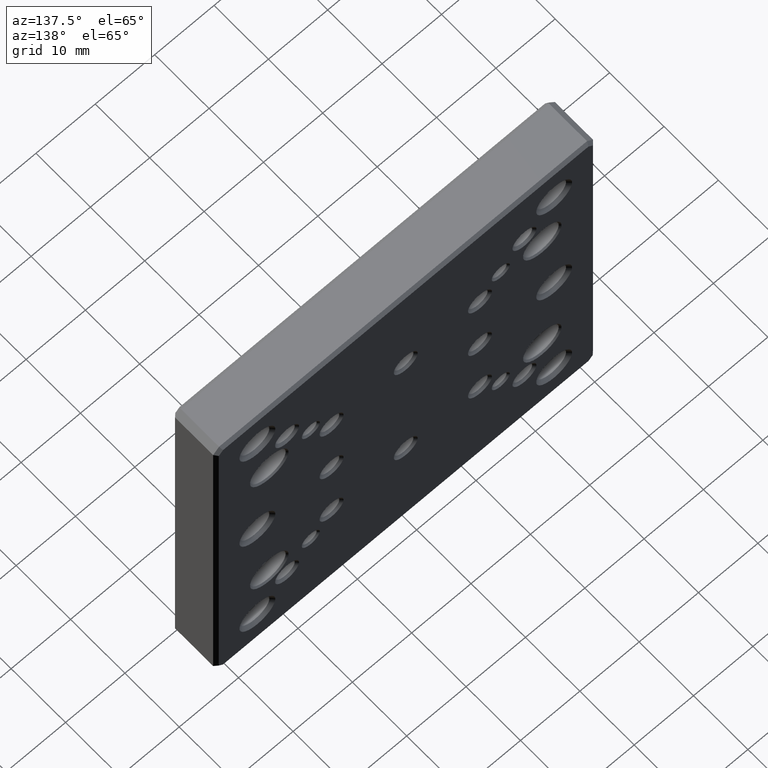
[diagram: clean part render]
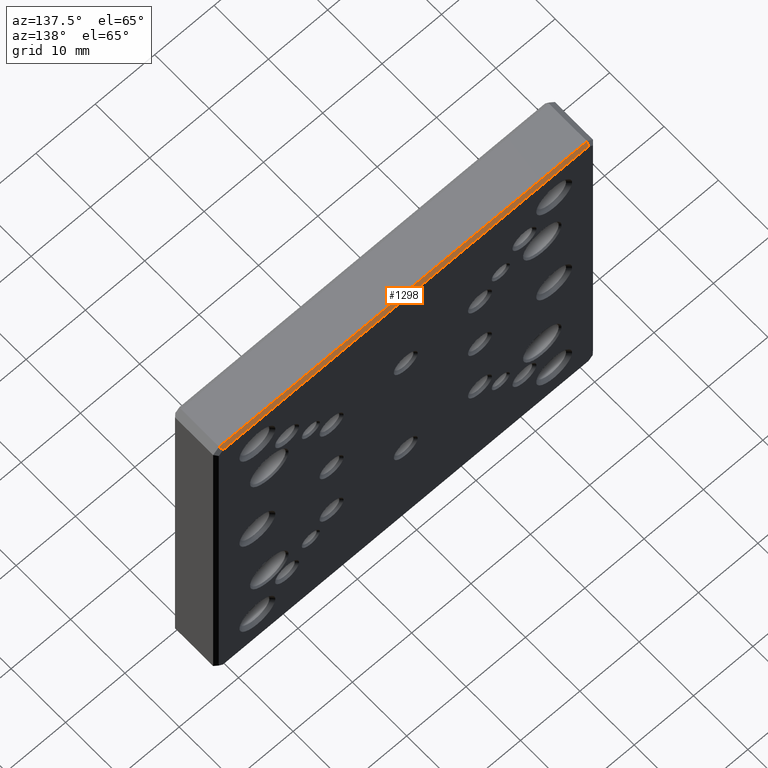
[diagram: same view with one face highlighted and labeled with its STEP entity id]
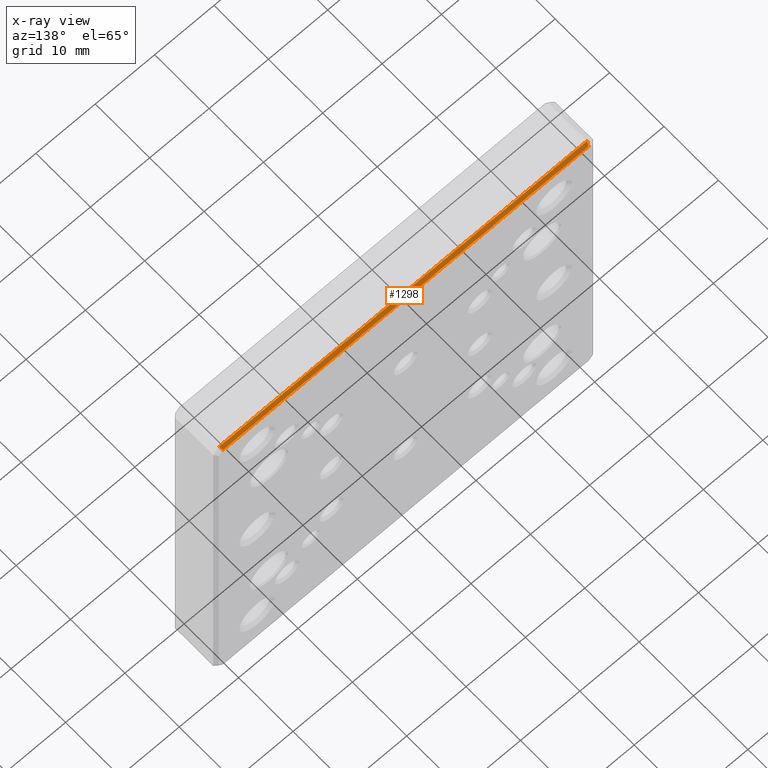
[diagram: x-ray of the same camera — body ghosted, the highlighted face saturated]
A machine part, auxiliary view. The second image highlights one B-rep face of the part: STEP entity #1298.
The next image is the same camera in x-ray: the body ghosted, the highlighted face saturated — about 0% of this face is hidden behind the body in this view.
In plain terms, the highlighted planar face has unit normal (0, 0.7071, 0.7071).
Its self-contained STEP definition (entity closure, byte-faithful):
#16 = CARTESIAN_POINT ( 'NONE',  ( -30.75338893203381119, 8.095371784915279534, 31.40462821508474534 ) ) ;
#112 = VECTOR ( 'NONE', #1000, 1000.000000000000000 ) ;
#125 = CARTESIAN_POINT ( 'NONE',  ( 0.000000000000000000, 8.000000000000000000, 31.50000000000002132 ) ) ;
#130 = ORIENTED_EDGE ( 'NONE', *, *, #634, .F. ) ;
#168 = VECTOR ( 'NONE', #1713, 1000.000000000000000 ) ;
#187 = LINE ( 'NONE', #769, #1487 ) ;
#239 = AXIS2_PLACEMENT_3D ( 'NONE', #125, #660, #1730 ) ;
#242 = DIRECTION ( 'NONE',  ( 0.2810846377148265574, -0.6785983445458457775, 0.6785983445458457775 ) ) ;
#246 = DIRECTION ( 'NONE',  ( -0.2810846377148147890, -0.6785983445458482199, 0.6785983445458482199 ) ) ;
#347 = CARTESIAN_POINT ( 'NONE',  ( 31.00000000000000000, 7.500000000000013323, 32.00000000000000711 ) ) ;
#426 = EDGE_CURVE ( 'NONE', #1182, #2295, #187, .T. ) ;
#430 = VERTEX_POINT ( 'NONE', #931 ) ;
#542 = EDGE_CURVE ( 'NONE', #2109, #1182, #2266, .T. ) ;
#606 = ORIENTED_EDGE ( 'NONE', *, *, #1384, .T. ) ;
#634 = EDGE_CURVE ( 'NONE', #2295, #430, #1179, .T. ) ;
#641 = CARTESIAN_POINT ( 'NONE',  ( -30.79289321881344321, 8.000000000000000000, 31.50000000000002132 ) ) ;
#660 = DIRECTION ( 'NONE',  ( 0.000000000000000000, 0.7071067811865475727, 0.7071067811865475727 ) ) ;
#769 = CARTESIAN_POINT ( 'NONE',  ( 28.35999064983191786, 13.87354637796741486, 25.62645362203260646 ) ) ;
#931 = CARTESIAN_POINT ( 'NONE',  ( -30.99999999999998579, 7.500000000000013323, 32.00000000000000711 ) ) ;
#999 = CARTESIAN_POINT ( 'NONE',  ( 30.79289321881345032, 8.000000000000000000, 31.50000000000002132 ) ) ;
#1000 = DIRECTION ( 'NONE',  ( -1.000000000000000000, 0.000000000000000000, 0.000000000000000000 ) ) ;
#1012 = FACE_OUTER_BOUND ( 'NONE', #1431, .T. ) ;
#1179 = LINE ( 'NONE', #1884, #112 ) ;
#1182 = VERTEX_POINT ( 'NONE', #999 ) ;
#1298 = ADVANCED_FACE ( 'NONE', ( #1012 ), #1721, .T. ) ;
#1384 = EDGE_CURVE ( 'NONE', #2109, #430, #1633, .T. ) ;
#1431 = EDGE_LOOP ( 'NONE', ( #606, #130, #1889, #1875 ) ) ;
#1487 = VECTOR ( 'NONE', #242, 1000.000000000000000 ) ;
#1574 = CARTESIAN_POINT ( 'NONE',  ( 31.00000000000000000, 8.000000000000000000, 31.50000000000002132 ) ) ;
#1633 = LINE ( 'NONE', #16, #2102 ) ;
#1713 = DIRECTION ( 'NONE',  ( 1.000000000000000000, 0.000000000000000000, 0.000000000000000000 ) ) ;
#1721 = PLANE ( 'NONE',  #239 ) ;
#1730 = DIRECTION ( 'NONE',  ( -1.000000000000000000, 0.000000000000000000, 0.000000000000000000 ) ) ;
#1875 = ORIENTED_EDGE ( 'NONE', *, *, #542, .F. ) ;
#1884 = CARTESIAN_POINT ( 'NONE',  ( -30.99999999999998579, 7.500000000000013323, 32.00000000000000711 ) ) ;
#1889 = ORIENTED_EDGE ( 'NONE', *, *, #426, .F. ) ;
#2102 = VECTOR ( 'NONE', #246, 1000.000000000000114 ) ;
#2109 = VERTEX_POINT ( 'NONE', #641 ) ;
#2266 = LINE ( 'NONE', #1574, #168 ) ;
#2295 = VERTEX_POINT ( 'NONE', #347 ) ;